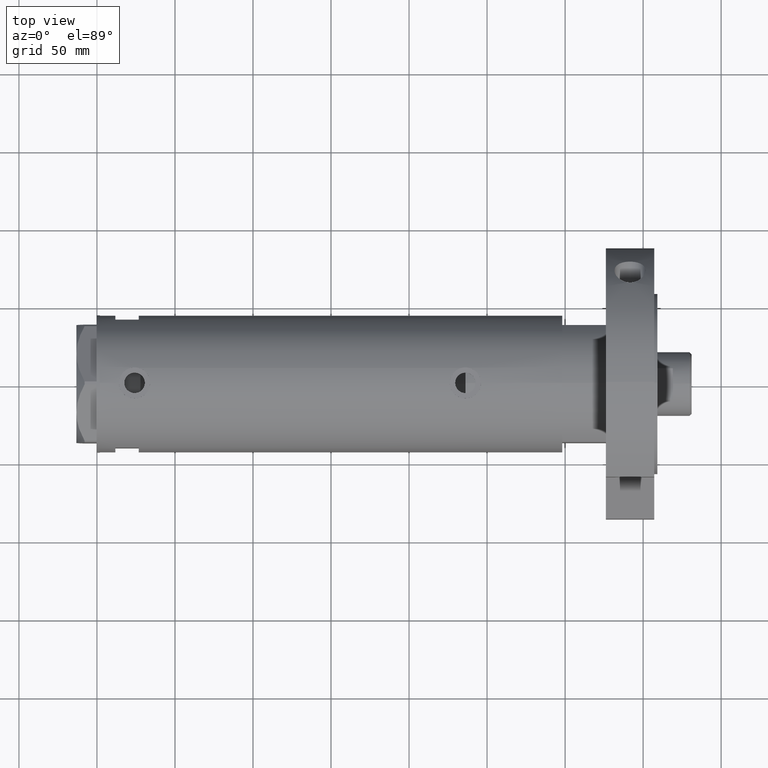
[diagram: clean part render]
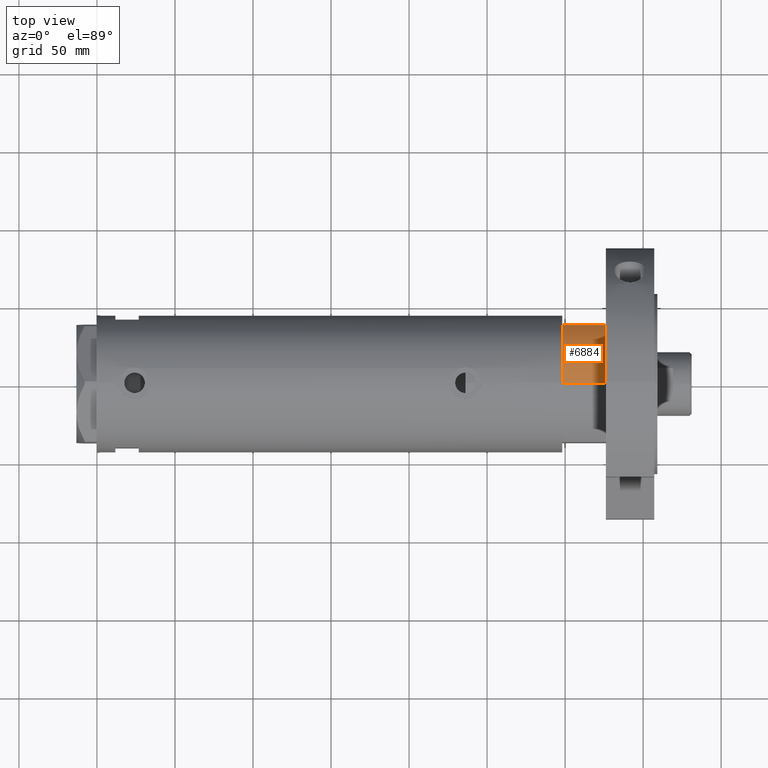
[diagram: same view with one face highlighted and labeled with its STEP entity id]
A machine part, top view. The second image highlights one B-rep face of the part: STEP entity #6884.
In plain terms, the highlighted cylindrical surface (partial cylindrical patch) has radius 44 mm, axis along (-1, -0, 0).
Its self-contained STEP definition (entity closure, byte-faithful):
#111 = LINE ( 'NONE', #1908, #7526 ) ;
#262 = EDGE_CURVE ( 'NONE', #436, #2996, #6987, .T. ) ;
#436 = VERTEX_POINT ( 'NONE', #1266 ) ;
#1008 = ORIENTED_EDGE ( 'NONE', *, *, #3156, .F. ) ;
#1013 = DIRECTION ( 'NONE',  ( 0.000000000000000000, 0.000000000000000000, 1.000000000000000000 ) ) ;
#1085 = ORIENTED_EDGE ( 'NONE', *, *, #7240, .T. ) ;
#1150 = DIRECTION ( 'NONE',  ( 1.000000000000000000, 0.000000000000000000, 0.000000000000000000 ) ) ;
#1266 = CARTESIAN_POINT ( 'NONE',  ( -44.00000000000000000, 0.000000000000000000, 27.89999999999999858 ) ) ;
#1454 = AXIS2_PLACEMENT_3D ( 'NONE', #2274, #3995, #6312 ) ;
#1579 = VERTEX_POINT ( 'NONE', #4092 ) ;
#1629 = ORIENTED_EDGE ( 'NONE', *, *, #5517, .F. ) ;
#1662 = CYLINDRICAL_SURFACE ( 'NONE', #1454, 44.00000000000000000 ) ;
#1908 = CARTESIAN_POINT ( 'NONE',  ( -23.01629857296780557, 37.50000000000000000, 0.000000000000000000 ) ) ;
#1948 = DIRECTION ( 'NONE',  ( -0.000000000000000000, -0.000000000000000000, 1.000000000000000000 ) ) ;
#2274 = CARTESIAN_POINT ( 'NONE',  ( 0.000000000000000000, 0.000000000000000000, 27.89999999999999858 ) ) ;
#2808 = FACE_OUTER_BOUND ( 'NONE', #4213, .T. ) ;
#2948 = CARTESIAN_POINT ( 'NONE',  ( -44.00000000000000000, 0.000000000000000000, 27.89999999999999858 ) ) ;
#2996 = VERTEX_POINT ( 'NONE', #6750 ) ;
#3077 = VERTEX_POINT ( 'NONE', #3508 ) ;
#3156 = EDGE_CURVE ( 'NONE', #1579, #3077, #111, .T. ) ;
#3505 = AXIS2_PLACEMENT_3D ( 'NONE', #4097, #1013, #5087 ) ;
#3508 = CARTESIAN_POINT ( 'NONE',  ( -23.01629857296780557, 37.50000000000000000, 27.89999999999999858 ) ) ;
#3995 = DIRECTION ( 'NONE',  ( -0.000000000000000000, -0.000000000000000000, -1.000000000000000000 ) ) ;
#4091 = DIRECTION ( 'NONE',  ( -0.000000000000000000, -0.000000000000000000, -1.000000000000000000 ) ) ;
#4092 = CARTESIAN_POINT ( 'NONE',  ( -23.01629857296780557, 37.50000000000000000, 0.000000000000000000 ) ) ;
#4097 = CARTESIAN_POINT ( 'NONE',  ( 0.000000000000000000, 0.000000000000000000, 27.89999999999999858 ) ) ;
#4213 = EDGE_LOOP ( 'NONE', ( #6935, #1629, #1008, #1085 ) ) ;
#4758 = AXIS2_PLACEMENT_3D ( 'NONE', #6260, #6341, #1150 ) ;
#5087 = DIRECTION ( 'NONE',  ( 1.000000000000000000, 0.000000000000000000, 0.000000000000000000 ) ) ;
#5401 = VECTOR ( 'NONE', #4091, 1000.000000000000000 ) ;
#5517 = EDGE_CURVE ( 'NONE', #3077, #436, #6796, .T. ) ;
#6260 = CARTESIAN_POINT ( 'NONE',  ( 0.000000000000000000, 0.000000000000000000, 0.000000000000000000 ) ) ;
#6312 = DIRECTION ( 'NONE',  ( -1.000000000000000000, 0.000000000000000000, 0.000000000000000000 ) ) ;
#6341 = DIRECTION ( 'NONE',  ( 0.000000000000000000, 0.000000000000000000, 1.000000000000000000 ) ) ;
#6750 = CARTESIAN_POINT ( 'NONE',  ( -44.00000000000000000, 0.000000000000000000, 0.000000000000000000 ) ) ;
#6796 = CIRCLE ( 'NONE', #3505, 44.00000000000000000 ) ;
#6884 = ADVANCED_FACE ( 'NONE', ( #2808 ), #1662, .T. ) ;
#6935 = ORIENTED_EDGE ( 'NONE', *, *, #262, .F. ) ;
#6987 = LINE ( 'NONE', #2948, #5401 ) ;
#7066 = CIRCLE ( 'NONE', #4758, 44.00000000000000000 ) ;
#7240 = EDGE_CURVE ( 'NONE', #1579, #2996, #7066, .T. ) ;
#7526 = VECTOR ( 'NONE', #1948, 1000.000000000000000 ) ;